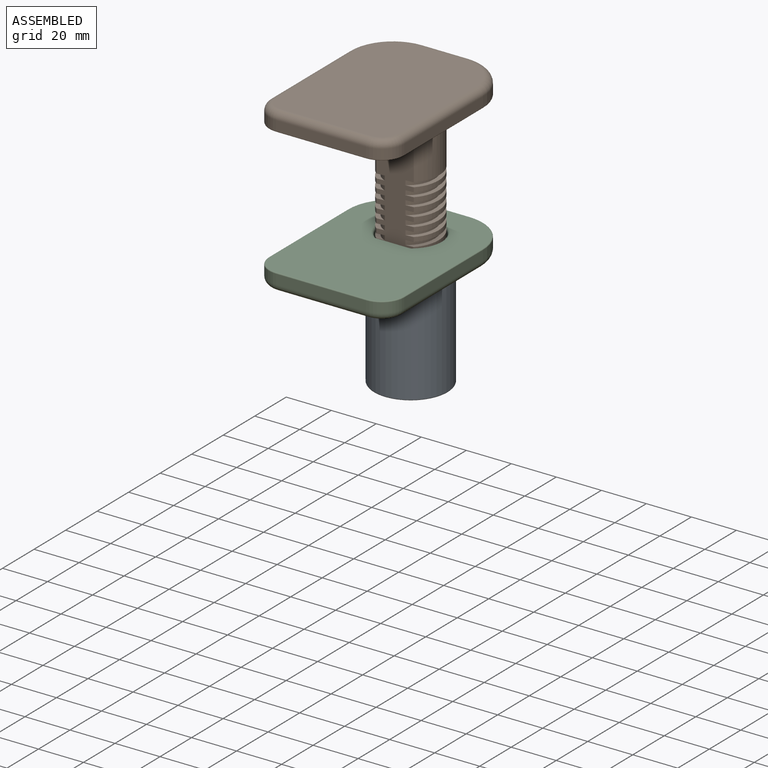
[diagram: assembled view]
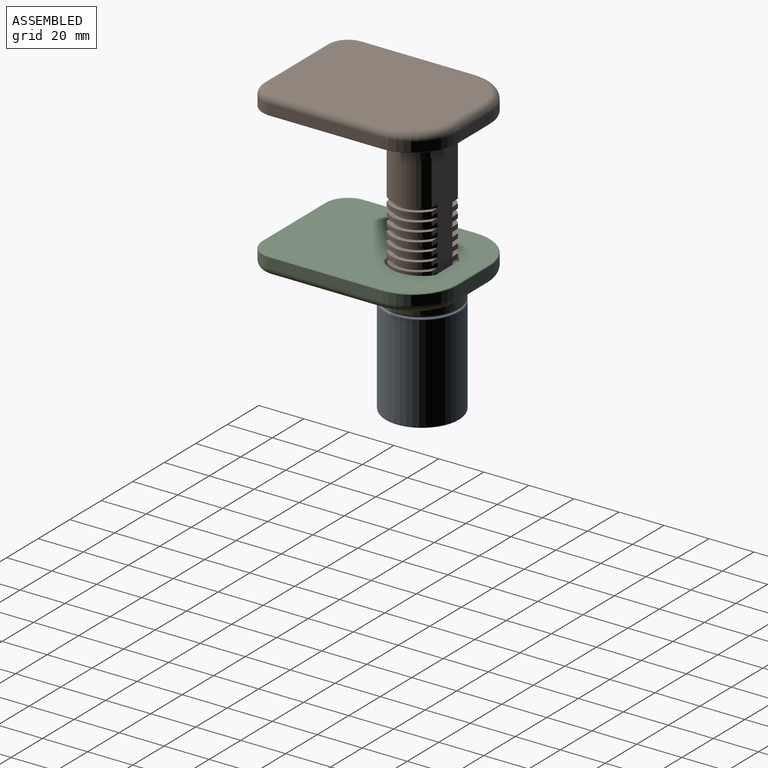
[diagram: assembled view, second angle]
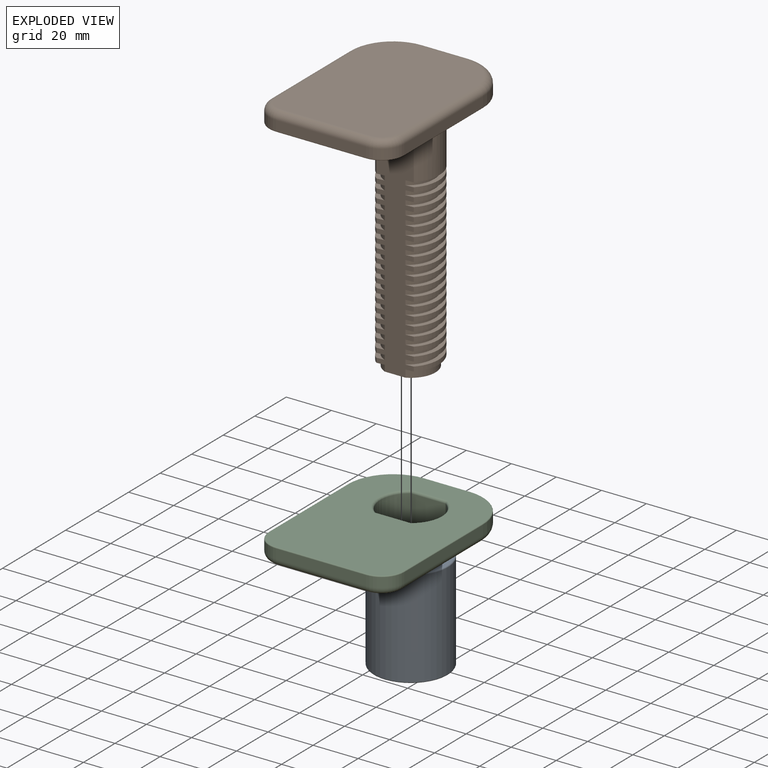
[diagram: exploded view]
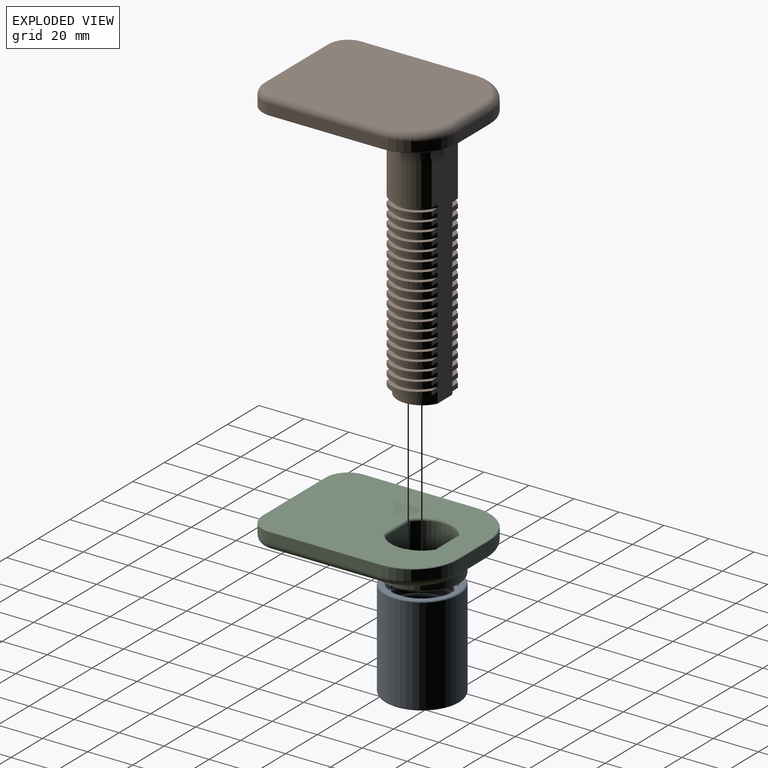
[diagram: exploded view, second angle]
ASSEMBLY  parts=3 mates=2
PART A: 28 faces, bbox 38.6x46.2x44 mm
  f0: cylinder r=12mm len=30.8mm, axis (0,0,-1), area 205.7mm2, adj f22,f24,f25,f27
  f1: bspline ~31.33x31.18mm, area 568.6mm2, adj f6,f7,f8,f9,f10,f11,f12,f13
  f2: bspline ~31.33x31.18mm, area 568.9mm2, adj f6,f7,f8,f9,f10,f11,f12,f13
  f3: plane 31.8x31.8mm, normal (0,0,-1), area 169.6mm2, adj f18,f21
  f4: plane 31.8x31.8mm, normal (0,0,1), area 169.6mm2, adj f19,f20
  f5: cylinder r=16.5mm len=42.8mm, axis (0,0,1), area 4437.2mm2, adj f20,f21
  f6: cylinder r=13.5mm len=27mm, axis (0,0,-1), area 960.8mm2, adj f1,f2,f13,f15,f16,f18
  f7: cylinder r=13.5mm len=27mm, axis (0,0,-1), area 425.1mm2, adj f1,f2,f8,f14,f17,f19
  f8: cylinder r=13.5mm len=27mm, axis (0,0,-1), area 220.5mm2, adj f1,f2,f7,f9
  f9: cylinder r=13.5mm len=27mm, axis (0,0,-1), area 220.5mm2, adj f1,f2,f8,f10
  f10: cylinder r=13.5mm len=27mm, axis (0,0,-1), area 220.5mm2, adj f1,f2,f9,f11
  f11: cylinder r=13.5mm len=27mm, axis (0,0,-1), area 220.5mm2, adj f1,f2,f10,f12
  f12: cylinder r=13.5mm len=27mm, axis (0,0,-1), area 220.5mm2, adj f1,f2,f11,f13
  f13: cylinder r=13.5mm len=27mm, axis (0,0,-1), area 220.5mm2, adj f1,f2,f6,f12
  f14: plane 4.22x2.74mm, normal (0,0,1), area 3.9mm2, adj f2,f7,f17,f27
  f15: plane 4.26x1.55mm, normal (0,0,-1), area 3.8mm2, adj f1,f6,f16,f22
  f16: bspline ~24.49x8.69mm, area 1.7mm2, adj f2,f6,f15,f23
  f17: bspline ~24.94x9.31mm, area 1.7mm2, adj f1,f7,f14,f26
  f18: torus R=14.1mm, axis (0,0,1), area 81.2mm2, adj f3,f6
  f19: torus R=14.1mm, axis (0,0,1), area 81.2mm2, adj f4,f7
  f20: torus R=15.9mm, axis (0,0,1), area 96.4mm2, adj f4,f5
  f21: torus R=15.9mm, axis (0,0,1), area 96.4mm2, adj f3,f5
  f22: torus R=12.6mm, axis (0,0,-1), area 3.7mm2, adj f0,f15,f23,f24
  f23: sphere r=0.6mm, area 1.3mm2, adj f16,f22,f25
  f24: bspline ~31.52x25.21mm, area 558.5mm2, adj f0,f1,f22,f26
  f25: bspline ~31.53x25.22mm, area 558.5mm2, adj f0,f2,f23,f27
  f26: sphere r=0.6mm, area 1.5mm2, adj f17,f24,f27
  f27: torus R=12.6mm, axis (0,0,1), area 3.8mm2, adj f0,f14,f25,f26
PART B: 198 faces, bbox 63.6x82.8x118.4 mm
  f0: cylinder r=8.5mm len=114.8mm, axis (0,0,1), area 6131.1mm2, adj f111,f197
  f1: plane 79.2x59.2mm, normal (0,0,1), area 3628.9mm2, adj f19,f20,f21,f22,f23,f24,f25,f26
  f2: plane 40x4.4mm, normal (0,1,0), area 176mm2, adj f3,f9,f11,f19
  f3: cylinder r=10mm len=10mm, axis (0,0,1), area 69.1mm2, adj f2,f4,f13,f21
  f4: plane 50x4.4mm, normal (-1,0,0), area 220mm2, adj f3,f5,f15,f23
  f5: cylinder r=20mm len=20mm, axis (0,0,1), area 138.2mm2, adj f4,f6,f17,f25
  f6: plane 20x4.4mm, normal (0,-1,0), area 88mm2, adj f5,f7,f18,f26
  f7: cylinder r=20mm len=20mm, axis (0,0,1), area 138.2mm2, adj f6,f8,f16,f24
  f8: plane 50x4.4mm, normal (1,0,0), area 220mm2, adj f7,f9,f14,f22
  f9: cylinder r=10mm len=10mm, axis (0,0,1), area 69.1mm2, adj f2,f8,f12,f20
  f10: plane 73.6x53.6mm, normal (0,0,-1), area 3804mm2, adj f11,f12,f13,f14,f15,f16,f17,f18
  f11: cylinder r=3.2mm len=40mm, axis (1,0,0), area 201.1mm2, adj f2,f10,f12,f13
  f12: torus R=6.8mm, axis (0,0,1), area 69.8mm2, adj f9,f10,f11,f14
  f13: torus R=6.8mm, axis (0,0,1), area 69.8mm2, adj f3,f10,f11,f15
  f14: cylinder r=3.2mm len=50mm, axis (0,-1,0), area 251.3mm2, adj f8,f10,f12,f16
  f15: cylinder r=3.2mm len=50mm, axis (0,1,0), area 251.3mm2, adj f4,f10,f13,f17
  f16: torus R=16.8mm, axis (0,0,1), area 148.7mm2, adj f7,f10,f14,f18
  f17: torus R=16.8mm, axis (0,0,1), area 148.7mm2, adj f5,f10,f15,f18
  f18: cylinder r=3.2mm len=20mm, axis (-1,0,0), area 100.5mm2, adj f6,f10,f16,f17
  f19: cylinder r=0.4mm len=40mm, axis (-1,0,0), area 25.1mm2, adj f1,f2,f20,f21
  f20: torus R=9.6mm, axis (0,0,1), area 9.7mm2, adj f1,f9,f19,f22
  f21: torus R=9.6mm, axis (0,0,1), area 9.7mm2, adj f1,f3,f19,f23
  f22: cylinder r=0.4mm len=50mm, axis (0,1,0), area 31.4mm2, adj f1,f8,f20,f24
  f23: cylinder r=0.4mm len=50mm, axis (0,-1,0), area 31.4mm2, adj f1,f4,f21,f25
  f24: torus R=19.6mm, axis (0,0,1), area 19.6mm2, adj f1,f7,f22,f26
  f25: torus R=19.6mm, axis (0,0,1), area 19.6mm2, adj f1,f5,f23,f26
  f26: cylinder r=0.4mm len=20mm, axis (1,0,0), area 12.6mm2, adj f1,f6,f24,f25
  f27: plane 15x2.5mm, normal (0,0,1), area 25.5mm2, adj f194,f196
  f28: torus R=13.5mm, axis (0,0,1), area 456.3mm2, adj f1,f193
  f29: plane 15x2.5mm, normal (0,0,1), area 25.5mm2, adj f192,f195
  f30: plane 10x8.42mm, normal (0,0,1), area 23.7mm2, adj f32,f33,f34,f192
  f31: plane 20x5.19mm, normal (0,0,1), area 11.3mm2, adj f32,f192,f193,f194
  f32: cylinder r=13mm len=20.56mm, axis (0,0,-1), area 459.6mm2, adj f30,f31,f33,f192,f194
  f33: bspline ~19.5x15.01mm, area 24.2mm2, adj f30,f32,f34,f194
  f34: cylinder r=11mm len=20mm, axis (0,0,-1), area 45.7mm2, adj f30,f33,f35,f192,f194
  f35: bspline ~30.02x19.5mm, area 48.4mm2, adj f34,f36,f192,f194
  f36: cylinder r=13mm len=20mm, axis (0,0,-1), area 45.6mm2, adj f35,f37,f192,f194
  f37: bspline ~30.02x19.5mm, area 48.4mm2, adj f36,f38,f192,f194
  f38: cylinder r=11mm len=20mm, axis (0,0,-1), area 50.2mm2, adj f37,f39,f192,f194
  f39: bspline ~30.02x19.5mm, area 48.4mm2, adj f38,f40,f192,f194
  f40: cylinder r=13mm len=20mm, axis (0,0,-1), area 45.6mm2, adj f39,f41,f192,f194
  f41: bspline ~30.02x19.5mm, area 48.4mm2, adj f40,f42,f192,f194
  f42: cylinder r=11mm len=20mm, axis (0,0,-1), area 50.2mm2, adj f41,f43,f192,f194
  f43: bspline ~30.02x19.5mm, area 48.4mm2, adj f42,f44,f192,f194
  f44: cylinder r=13mm len=20mm, axis (0,0,-1), area 45.6mm2, adj f43,f45,f192,f194
  f45: bspline ~30.02x19.5mm, area 48.4mm2, adj f44,f46,f192,f194
  f46: cylinder r=11mm len=20mm, axis (0,0,-1), area 50.2mm2, adj f45,f47,f192,f194
  f47: bspline ~30.02x19.5mm, area 48.4mm2, adj f46,f48,f192,f194
  f48: cylinder r=13mm len=20mm, axis (0,0,-1), area 45.6mm2, adj f47,f49,f192,f194
  f49: bspline ~30.02x19.5mm, area 48.4mm2, adj f48,f50,f192,f194
  f50: cylinder r=11mm len=20mm, axis (0,0,-1), area 50.2mm2, adj f49,f51,f192,f194
  f51: bspline ~30.02x19.5mm, area 48.4mm2, adj f50,f52,f192,f194
  f52: cylinder r=13mm len=20mm, axis (0,0,-1), area 45.6mm2, adj f51,f53,f192,f194
  f53: bspline ~30.02x19.5mm, area 48.4mm2, adj f52,f54,f192,f194
  f54: cylinder r=11mm len=20mm, axis (0,0,-1), area 50.2mm2, adj f53,f55,f192,f194
  f55: bspline ~30.02x19.5mm, area 48.4mm2, adj f54,f56,f192,f194
  f56: cylinder r=13mm len=20mm, axis (0,0,-1), area 45.6mm2, adj f55,f57,f192,f194
  f57: bspline ~30.02x19.5mm, area 48.4mm2, adj f56,f58,f192,f194
  f58: cylinder r=11mm len=20mm, axis (0,0,-1), area 50.2mm2, adj f57,f59,f192,f194
  f59: bspline ~30.02x19.5mm, area 48.4mm2, adj f58,f60,f192,f194
  f60: cylinder r=13mm len=20mm, axis (0,0,-1), area 45.6mm2, adj f59,f61,f192,f194
  f61: bspline ~30.02x19.5mm, area 48.4mm2, adj f60,f62,f192,f194
  f62: cylinder r=11mm len=20mm, axis (0,0,-1), area 50.2mm2, adj f61,f63,f192,f194
  f63: bspline ~30.02x19.5mm, area 48.4mm2, adj f62,f64,f192,f194
  f64: cylinder r=13mm len=20mm, axis (0,0,-1), area 45.6mm2, adj f63,f65,f192,f194
  f65: bspline ~30.02x19.5mm, area 48.4mm2, adj f64,f66,f192,f194
  f66: cylinder r=11mm len=20mm, axis (0,0,-1), area 50.2mm2, adj f65,f67,f192,f194
  f67: bspline ~30.02x19.5mm, area 48.4mm2, adj f66,f68,f192,f194
  f68: cylinder r=13mm len=20mm, axis (0,0,-1), area 45.6mm2, adj f67,f69,f192,f194
  f69: bspline ~30.02x19.5mm, area 48.4mm2, adj f68,f70,f192,f194
  f70: cylinder r=11mm len=20mm, axis (0,0,-1), area 50.2mm2, adj f69,f71,f192,f194
  f71: bspline ~30.02x19.5mm, area 48.4mm2, adj f70,f72,f192,f194
  f72: cylinder r=13mm len=20mm, axis (0,0,-1), area 45.6mm2, adj f71,f73,f192,f194
  f73: bspline ~30.02x19.5mm, area 48.4mm2, adj f72,f74,f192,f194
  f74: cylinder r=11mm len=20mm, axis (0,0,-1), area 50.2mm2, adj f73,f75,f192,f194
  f75: bspline ~30.02x19.5mm, area 48.4mm2, adj f74,f76,f192,f194
  f76: cylinder r=13mm len=20mm, axis (0,0,-1), area 45.6mm2, adj f75,f77,f192,f194
  f77: bspline ~30.02x19.5mm, area 48.4mm2, adj f76,f78,f192,f194
  f78: cylinder r=11mm len=20mm, axis (0,0,-1), area 50.2mm2, adj f77,f79,f192,f194
  f79: bspline ~30.02x19.5mm, area 48.4mm2, adj f78,f80,f192,f194
  f80: cylinder r=13mm len=20mm, axis (0,0,-1), area 45.6mm2, adj f79,f81,f192,f194
  f81: bspline ~30.02x19.5mm, area 48.4mm2, adj f80,f82,f192,f194
  f82: cylinder r=11mm len=20mm, axis (0,0,-1), area 50.2mm2, adj f81,f83,f192,f194
  f83: bspline ~30.02x19.5mm, area 48.4mm2, adj f82,f84,f192,f194
  f84: cylinder r=13mm len=20mm, axis (0,0,-1), area 45.6mm2, adj f83,f85,f192,f194
  f85: bspline ~30.02x19.5mm, area 48.4mm2, adj f84,f86,f192,f194
  f86: cylinder r=11mm len=20mm, axis (0,0,-1), area 50.2mm2, adj f85,f87,f192,f194
  f87: bspline ~30.02x19.5mm, area 48.4mm2, adj f86,f88,f192,f194
  f88: cylinder r=13mm len=20mm, axis (0,0,-1), area 45.6mm2, adj f87,f89,f192,f194
  f89: bspline ~30.02x19.5mm, area 48.4mm2, adj f88,f90,f192,f194
  f90: cylinder r=11mm len=20mm, axis (0,0,-1), area 50.2mm2, adj f89,f91,f192,f194
  f91: bspline ~30.02x19.5mm, area 48.4mm2, adj f90,f92,f192,f194
  f92: cylinder r=13mm len=20mm, axis (0,0,-1), area 45.6mm2, adj f91,f93,f192,f194
  f93: bspline ~30.02x19.5mm, area 48.4mm2, adj f92,f94,f192,f194
  f94: cylinder r=11mm len=20mm, axis (0,0,-1), area 50.2mm2, adj f93,f95,f192,f194
  f95: bspline ~30.02x19.5mm, area 48.4mm2, adj f94,f96,f192,f194
  f96: cylinder r=13mm len=20mm, axis (0,0,-1), area 45.6mm2, adj f95,f97,f192,f194
  f97: bspline ~30.02x19.5mm, area 48.4mm2, adj f96,f98,f192,f194
  f98: cylinder r=11mm len=20mm, axis (0,0,-1), area 50.2mm2, adj f97,f99,f192,f194
  f99: bspline ~30.02x19.5mm, area 48.4mm2, adj f98,f100,f192,f194
  f100: cylinder r=13mm len=20mm, axis (0,0,-1), area 45.6mm2, adj f99,f101,f192,f194
  f101: bspline ~30.02x19.5mm, area 48.4mm2, adj f100,f102,f192,f194
  f102: cylinder r=11mm len=20mm, axis (0,0,-1), area 50.2mm2, adj f101,f103,f192,f194
  f103: bspline ~30.02x19.5mm, area 48.4mm2, adj f102,f104,f192,f194
  f104: cylinder r=13mm len=20mm, axis (0,0,-1), area 45.6mm2, adj f103,f105,f192,f194
  f105: bspline ~30.02x19.5mm, area 48.4mm2, adj f104,f106,f192,f194
  f106: cylinder r=11mm len=20mm, axis (0,0,-1), area 50.2mm2, adj f105,f107,f192,f194
  f107: bspline ~30.02x19.5mm, area 48.4mm2, adj f106,f108,f192,f194
  f108: cylinder r=13mm len=20mm, axis (0,0,-1), area 45.6mm2, adj f107,f109,f192,f194
  f109: bspline ~30.02x19.5mm, area 48.4mm2, adj f108,f110,f192,f194
  f110: cylinder r=11mm len=20mm, axis (0,0,-1), area 100.4mm2, adj f109,f111,f192,f194
  f111: plane 22x20mm, normal (0,0,1), area 140.8mm2, adj f0,f110,f112,f192,f194
  f112: cylinder r=11mm len=20mm, axis (0,0,-1), area 50.2mm2, adj f111,f113,f192,f194
  f113: bspline ~30.02x19.5mm, area 48.4mm2, adj f112,f114,f192,f194
  f114: cylinder r=13mm len=20mm, axis (0,0,-1), area 45.6mm2, adj f113,f115,f192,f194
  f115: bspline ~30.02x19.5mm, area 48.4mm2, adj f114,f116,f192,f194
  f116: cylinder r=11mm len=20mm, axis (0,0,-1), area 50.2mm2, adj f115,f117,f192,f194
  f117: bspline ~30.02x19.5mm, area 48.4mm2, adj f116,f118,f192,f194
  f118: cylinder r=13mm len=20mm, axis (0,0,-1), area 45.6mm2, adj f117,f119,f192,f194
  f119: bspline ~30.02x19.5mm, area 48.4mm2, adj f118,f120,f192,f194
  f120: cylinder r=11mm len=20mm, axis (0,0,-1), area 50.2mm2, adj f119,f121,f192,f194
  f121: bspline ~30.02x19.5mm, area 48.4mm2, adj f120,f122,f192,f194
  f122: cylinder r=13mm len=20mm, axis (0,0,-1), area 45.6mm2, adj f121,f123,f192,f194
  f123: bspline ~30.02x19.5mm, area 48.4mm2, adj f122,f124,f192,f194
  f124: cylinder r=11mm len=20mm, axis (0,0,-1), area 50.2mm2, adj f123,f125,f192,f194
  f125: bspline ~30.02x19.5mm, area 48.4mm2, adj f124,f126,f192,f194
  f126: cylinder r=13mm len=20mm, axis (0,0,-1), area 45.6mm2, adj f125,f127,f192,f194
  f127: bspline ~30.02x19.5mm, area 48.4mm2, adj f126,f128,f192,f194
  f128: cylinder r=11mm len=20mm, axis (0,0,-1), area 50.2mm2, adj f127,f129,f192,f194
  f129: bspline ~30.02x19.5mm, area 48.4mm2, adj f128,f130,f192,f194
  f130: cylinder r=13mm len=20mm, axis (0,0,-1), area 45.6mm2, adj f129,f131,f192,f194
  f131: bspline ~30.02x19.5mm, area 48.4mm2, adj f130,f132,f192,f194
  f132: cylinder r=11mm len=20mm, axis (0,0,-1), area 50.2mm2, adj f131,f133,f192,f194
  f133: bspline ~30.02x19.5mm, area 48.4mm2, adj f132,f134,f192,f194
  f134: cylinder r=13mm len=20mm, axis (0,0,-1), area 45.6mm2, adj f133,f135,f192,f194
  f135: bspline ~30.02x19.5mm, area 48.4mm2, adj f134,f136,f192,f194
  f136: cylinder r=11mm len=20mm, axis (0,0,-1), area 50.2mm2, adj f135,f137,f192,f194
  f137: bspline ~30.02x19.5mm, area 48.4mm2, adj f136,f138,f192,f194
  f138: cylinder r=13mm len=20mm, axis (0,0,-1), area 45.6mm2, adj f137,f139,f192,f194
  f139: bspline ~30.02x19.5mm, area 48.4mm2, adj f138,f140,f192,f194
  f140: cylinder r=11mm len=20mm, axis (0,0,-1), area 50.2mm2, adj f139,f141,f192,f194
  f141: bspline ~30.02x19.5mm, area 48.4mm2, adj f140,f142,f192,f194
  f142: cylinder r=13mm len=20mm, axis (0,0,-1), area 45.6mm2, adj f141,f143,f192,f194
  f143: bspline ~30.02x19.5mm, area 48.4mm2, adj f142,f144,f192,f194
  f144: cylinder r=11mm len=20mm, axis (0,0,-1), area 50.2mm2, adj f143,f145,f192,f194
  f145: bspline ~30.02x19.5mm, area 48.4mm2, adj f144,f146,f192,f194
  f146: cylinder r=13mm len=20mm, axis (0,0,-1), area 45.6mm2, adj f145,f147,f192,f194
  f147: bspline ~30.02x19.5mm, area 48.4mm2, adj f146,f148,f192,f194
  f148: cylinder r=11mm len=20mm, axis (0,0,-1), area 50.2mm2, adj f147,f149,f192,f194
  f149: bspline ~30.02x19.5mm, area 48.4mm2, adj f148,f150,f192,f194
  f150: cylinder r=13mm len=20mm, axis (0,0,-1), area 45.6mm2, adj f149,f151,f192,f194
  f151: bspline ~30.02x19.5mm, area 48.4mm2, adj f150,f152,f192,f194
  f152: cylinder r=11mm len=20mm, axis (0,0,-1), area 50.2mm2, adj f151,f153,f192,f194
  f153: bspline ~30.02x19.5mm, area 48.4mm2, adj f152,f154,f192,f194
  f154: cylinder r=13mm len=20mm, axis (0,0,-1), area 45.6mm2, adj f153,f155,f192,f194
  f155: bspline ~30.02x19.5mm, area 48.4mm2, adj f154,f156,f192,f194
  f156: cylinder r=11mm len=20mm, axis (0,0,-1), area 50.2mm2, adj f155,f157,f192,f194
  f157: bspline ~30.02x19.5mm, area 48.4mm2, adj f156,f158,f192,f194
  f158: cylinder r=13mm len=20mm, axis (0,0,-1), area 45.6mm2, adj f157,f159,f192,f194
  f159: bspline ~30.02x19.5mm, area 48.4mm2, adj f158,f160,f192,f194
  f160: cylinder r=11mm len=20mm, axis (0,0,-1), area 50.2mm2, adj f159,f161,f192,f194
  f161: bspline ~30.02x19.5mm, area 48.4mm2, adj f160,f162,f192,f194
  f162: cylinder r=13mm len=20mm, axis (0,0,-1), area 45.6mm2, adj f161,f163,f192,f194
  f163: bspline ~30.02x19.5mm, area 48.4mm2, adj f162,f164,f192,f194
  f164: cylinder r=11mm len=20mm, axis (0,0,-1), area 50.2mm2, adj f163,f165,f192,f194
  f165: bspline ~30.02x19.5mm, area 48.4mm2, adj f164,f166,f192,f194
  f166: cylinder r=13mm len=20mm, axis (0,0,-1), area 45.6mm2, adj f165,f167,f192,f194
  f167: bspline ~30.02x19.5mm, area 48.4mm2, adj f166,f168,f192,f194
  f168: cylinder r=11mm len=20mm, axis (0,0,-1), area 50.2mm2, adj f167,f169,f192,f194
  f169: bspline ~30.02x19.5mm, area 48.4mm2, adj f168,f170,f192,f194
  f170: cylinder r=13mm len=20mm, axis (0,0,-1), area 45.6mm2, adj f169,f171,f192,f194
  f171: bspline ~30.02x19.5mm, area 48.4mm2, adj f170,f172,f192,f194
  f172: cylinder r=11mm len=20mm, axis (0,0,-1), area 50.2mm2, adj f171,f173,f192,f194
  f173: bspline ~30.02x19.5mm, area 48.4mm2, adj f172,f174,f192,f194
  f174: cylinder r=13mm len=20mm, axis (0,0,-1), area 45.6mm2, adj f173,f175,f192,f194
  f175: bspline ~30.02x19.5mm, area 48.4mm2, adj f174,f176,f192,f194
  f176: cylinder r=11mm len=20mm, axis (0,0,-1), area 50.2mm2, adj f175,f177,f192,f194
  f177: bspline ~30.02x19.5mm, area 48.4mm2, adj f176,f178,f192,f194
  f178: cylinder r=13mm len=20mm, axis (0,0,-1), area 45.6mm2, adj f177,f179,f192,f194
  f179: bspline ~30.02x19.5mm, area 48.4mm2, adj f178,f180,f192,f194
  f180: cylinder r=11mm len=20mm, axis (0,0,-1), area 50.2mm2, adj f179,f181,f192,f194
  f181: bspline ~30.02x19.5mm, area 48.4mm2, adj f180,f182,f192,f194
  f182: cylinder r=13mm len=20mm, axis (0,0,-1), area 45.6mm2, adj f181,f183,f192,f194
  f183: bspline ~30.02x19.5mm, area 48.4mm2, adj f182,f184,f192,f194
  f184: cylinder r=11mm len=20mm, axis (0,0,-1), area 50.2mm2, adj f183,f185,f192,f194
  f185: bspline ~30.02x19.5mm, area 48.4mm2, adj f184,f186,f192,f194
  f186: cylinder r=13mm len=20mm, axis (0,0,-1), area 45.6mm2, adj f185,f187,f192,f194
  f187: bspline ~30.02x19.5mm, area 48.4mm2, adj f186,f188,f192,f194
  f188: cylinder r=11mm len=20mm, axis (0,0,-1), area 50.2mm2, adj f187,f189,f192,f194
  f189: bspline ~30.02x19.5mm, area 48.4mm2, adj f188,f190,f192,f194
  f190: cylinder r=13mm len=22.56mm, axis (0,0,-1), area 502mm2, adj f189,f191,f192,f194
  f191: plane 20x5.19mm, normal (0,0,1), area 11.3mm2, adj f190,f192,f193,f194
  f192: plane 106.35x18.49mm, normal (0,-1,0), area 1449.7mm2, adj f29,f30,f31,f32,f34,f35,f36,f37
  f193: cylinder r=13.5mm len=27mm, axis (0,0,-1), area 355.1mm2, adj f28,f31,f191,f192,f194,f195,f196
  f194: plane 106.35x18.49mm, normal (0,1,0), area 1447.3mm2, adj f27,f31,f32,f33,f34,f35,f36,f37
  f195: torus R=12.5mm, axis (0,0,1), area 29.1mm2, adj f29,f192,f193
  f196: torus R=12.5mm, axis (0,0,1), area 29.1mm2, adj f27,f193,f194
  f197: plane 17x17mm, normal (0,0,1), area 227mm2, adj f0
PART C: 55 faces, bbox 63.3x82.5x16 mm
  f0: plane 40x4.4mm, normal (0,1,0), area 176mm2, adj f1,f7,f14,f22
  f1: cylinder r=10mm len=10mm, axis (0,0,1), area 69.1mm2, adj f0,f2,f16,f24
  f2: plane 50x4.4mm, normal (-1,0,0), area 220mm2, adj f1,f3,f18,f26
  f3: cylinder r=20mm len=20mm, axis (0,0,1), area 138.2mm2, adj f2,f4,f20,f28
  f4: plane 20x4.4mm, normal (0,-1,0), area 88mm2, adj f3,f5,f21,f29
  f5: cylinder r=20mm len=20mm, axis (0,0,1), area 138.2mm2, adj f4,f6,f19,f27
  f6: plane 50x4.4mm, normal (1,0,0), area 220mm2, adj f5,f7,f17,f25
  f7: cylinder r=10mm len=10mm, axis (0,0,1), area 69.1mm2, adj f0,f6,f15,f23
  f8: plane 73.6x53.6mm, normal (0,0,-1), area 2488.7mm2, adj f14,f15,f16,f17,f18,f19,f20,f21
  f9: plane 79.2x59.2mm, normal (0,0,1), area 3879.1mm2, adj f22,f23,f24,f25,f26,f27,f28,f29
  f10: cylinder r=13.5mm len=21.6mm, axis (0,0,1), area 350.5mm2, adj f32,f36,f37,f38
  f11: plane 15x14mm, normal (0,-1,0), area 210mm2, adj f35,f36,f45,f46
  f12: cylinder r=13.5mm len=21.6mm, axis (0,0,1), area 350.5mm2, adj f40,f45,f48,f51
  f13: plane 15x14mm, normal (0,1,0), area 210mm2, adj f38,f39,f47,f48
  f14: cylinder r=3.2mm len=40mm, axis (1,0,0), area 201.1mm2, adj f0,f8,f15,f16
  f15: torus R=6.8mm, axis (0,0,1), area 69.8mm2, adj f7,f8,f14,f17
  f16: torus R=6.8mm, axis (0,0,1), area 69.8mm2, adj f1,f8,f14,f18
  f17: cylinder r=3.2mm len=50mm, axis (0,-1,0), area 251.3mm2, adj f6,f8,f15,f19
  f18: cylinder r=3.2mm len=50mm, axis (0,1,0), area 251.3mm2, adj f2,f8,f16,f20
  f19: torus R=16.8mm, axis (0,0,1), area 148.7mm2, adj f5,f8,f17,f21
  f20: torus R=16.8mm, axis (0,0,1), area 148.7mm2, adj f3,f8,f18,f21
  f21: cylinder r=3.2mm len=20mm, axis (-1,0,0), area 98.3mm2, adj f4,f8,f19,f20,f54
  f22: cylinder r=0.4mm len=40mm, axis (-1,0,0), area 25.1mm2, adj f0,f9,f23,f24
  f23: torus R=9.6mm, axis (0,0,1), area 9.7mm2, adj f7,f9,f22,f25
  f24: torus R=9.6mm, axis (0,0,1), area 9.7mm2, adj f1,f9,f22,f26
  f25: cylinder r=0.4mm len=50mm, axis (0,1,0), area 31.4mm2, adj f6,f9,f23,f27
  f26: cylinder r=0.4mm len=50mm, axis (0,-1,0), area 31.4mm2, adj f2,f9,f24,f28
  f27: torus R=19.6mm, axis (0,0,1), area 19.6mm2, adj f5,f9,f25,f29
  f28: torus R=19.6mm, axis (0,0,1), area 19.6mm2, adj f3,f9,f26,f29
  f29: cylinder r=0.4mm len=20mm, axis (1,0,0), area 12.6mm2, adj f4,f9,f27,f28
  f30: cylinder r=16.5mm len=33mm, axis (0,0,1), area 311.2mm2, adj f52,f53,f54
  f31: plane 31x31mm, normal (0,0,-1), area 149.7mm2, adj f37,f42,f43,f46,f47,f49,f50,f51
  f32: torus R=14.5mm, axis (0,0,1), area 40.4mm2, adj f9,f10,f33,f34
  f33: torus R=2mm, axis (0,0,1), area 1.4mm2, adj f9,f32,f35,f36
  f34: torus R=2mm, axis (0,0,1), area 1.4mm2, adj f9,f32,f38,f39
  f35: cylinder r=1mm len=15mm, axis (1,0,0), area 23.6mm2, adj f9,f11,f33,f41
  f36: cylinder r=1mm len=14mm, axis (0,0,1), area 9mm2, adj f10,f11,f33,f42
  f37: torus R=14.5mm, axis (0,0,-1), area 40.4mm2, adj f10,f31,f42,f43
  f38: cylinder r=1mm len=14mm, axis (0,0,1), area 9mm2, adj f10,f13,f34,f43
  f39: cylinder r=1mm len=15mm, axis (-1,0,0), area 23.6mm2, adj f9,f13,f34,f44
  f40: torus R=14.5mm, axis (0,0,1), area 40.4mm2, adj f9,f12,f41,f44
  f41: torus R=2mm, axis (0,0,1), area 1.4mm2, adj f9,f35,f40,f45
  f42: torus R=2mm, axis (0,0,-1), area 1.4mm2, adj f31,f36,f37,f46
  f43: torus R=2mm, axis (0,0,-1), area 1.4mm2, adj f31,f37,f38,f47
  f44: torus R=2mm, axis (0,0,1), area 1.4mm2, adj f9,f39,f40,f48
  f45: cylinder r=1mm len=14mm, axis (0,0,1), area 9mm2, adj f11,f12,f41,f49
  f46: cylinder r=1mm len=15mm, axis (1,0,0), area 23.6mm2, adj f11,f31,f42,f49
  f47: cylinder r=1mm len=15mm, axis (-1,0,0), area 23.6mm2, adj f13,f31,f43,f50
  f48: cylinder r=1mm len=14mm, axis (0,0,1), area 9mm2, adj f12,f13,f44,f50
  f49: torus R=2mm, axis (0,0,-1), area 1.4mm2, adj f31,f45,f46,f51
  f50: torus R=2mm, axis (0,0,-1), area 1.4mm2, adj f31,f47,f48,f51
  f51: torus R=14.5mm, axis (0,0,-1), area 40.4mm2, adj f12,f31,f49,f50
  f52: torus R=15.5mm, axis (0,0,-1), area 159.3mm2, adj f30,f31
  f53: torus R=20.5mm, axis (0,0,1), area 649.6mm2, adj f8,f30,f54
  f54: bspline ~13.39x4.7mm, area 56.4mm2, adj f21,f30,f53
PLACE A rot(axis=(0,0,1),22.5deg) t=(-47.84,53.19,-299.39)mm
PLACE B rot(axis=(-1,0,0),180deg) t=(-47.84,53.19,-136.7)mm
PLACE C rot(axis=(0,0,1),180deg) t=(-47.84,53.19,-193.21)mm
MATE cylindrical B.f32 <-> A.f5  axis (0,0,-1) through (-47.84,53.19,-246.7)mm
MATE slider B.f32 <-> C.f12  axis (0,0,-1) through (-47.84,53.19,-246.7)mm
